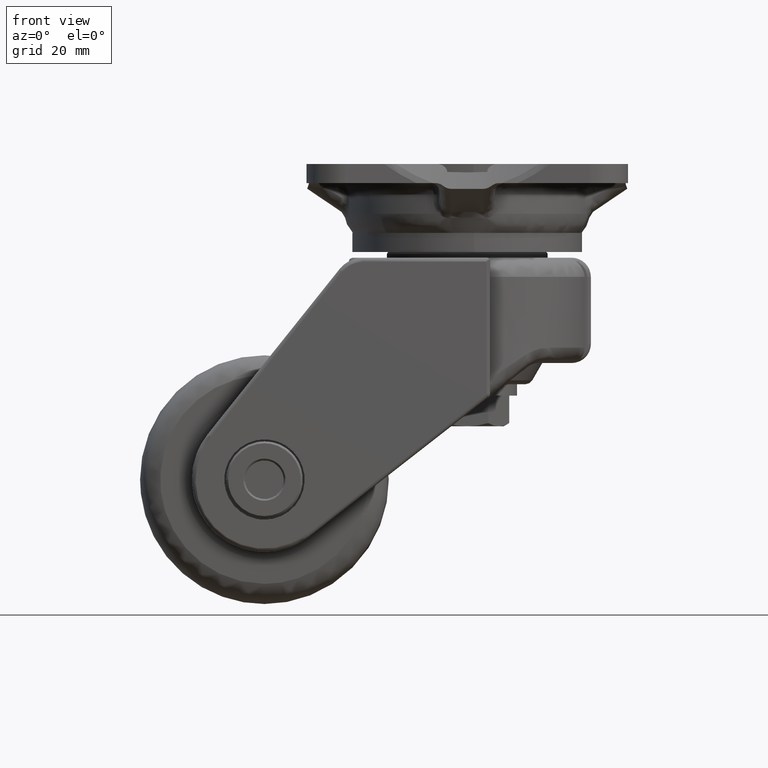
[diagram: clean part render]
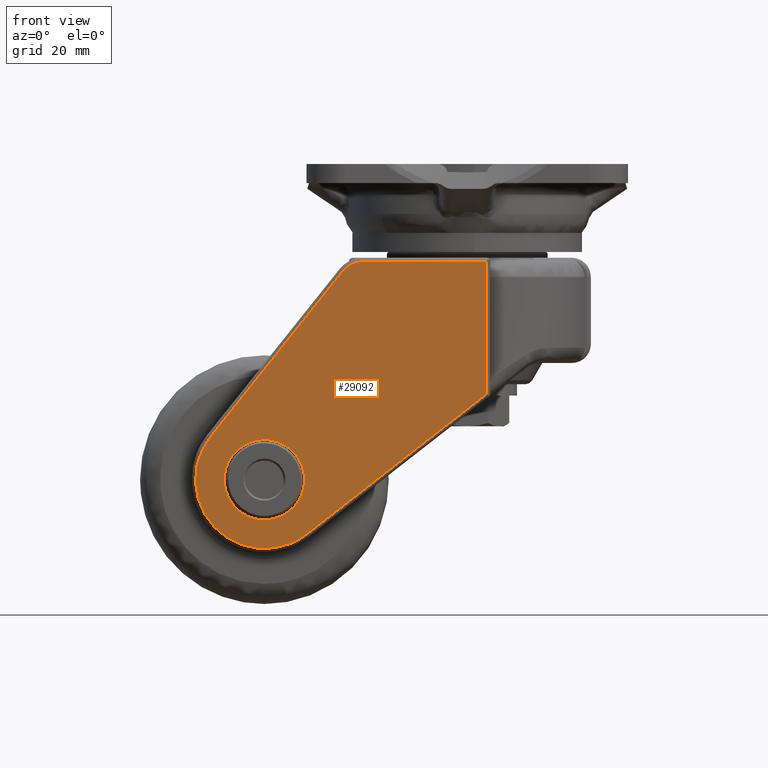
[diagram: same view with one face highlighted and labeled with its STEP entity id]
A machine part, front view. The second image highlights one B-rep face of the part: STEP entity #29092.
In plain terms, the highlighted face is a freeform B-spline surface patch.
Its self-contained STEP definition (entity closure, byte-faithful):
#23173=CARTESIAN_POINT('',(-63.426600026808622,-36.950000000000003,-63.260640536020858));
#23174=VERTEX_POINT('',#23173);
#23180=CARTESIAN_POINT('',(-53.0,-36.950000000000003,-75.0));
#23181=VERTEX_POINT('',#23180);
#23182=CARTESIAN_POINT('',(-63.426600026808615,-36.949999999999996,-63.260640536020858));
#23183=CARTESIAN_POINT('',(-63.500000000000000,-36.950000000000010,-63.878146743570888));
#23184=CARTESIAN_POINT('',(-63.500000000000000,-36.950000000000003,-64.500000000000000));
#23185=CARTESIAN_POINT('',(-63.499999999999993,-36.950000000000003,-75.0));
#23186=CARTESIAN_POINT('',(-53.0,-36.950000000000003,-75.0));
#23194=(BOUNDED_CURVE()B_SPLINE_CURVE(2,(#23182,#23183,#23184,#23185,#23186),.UNSPECIFIED.,.F.,.U.)B_SPLINE_CURVE_WITH_KNOTS((3,2,3),(0.229562473512948,0.250000000000000,0.500000000000000),.UNSPECIFIED.)CURVE()GEOMETRIC_REPRESENTATION_ITEM()RATIONAL_B_SPLINE_CURVE((0.956026754182601,0.976055948330489,1.0,0.707106781186547,1.0))REPRESENTATION_ITEM(''));
#23195=EDGE_CURVE('',#23174,#23181,#23194,.T.);
#23197=CARTESIAN_POINT('',(-42.519584616573979,-36.950000000000003,-65.141009665174607));
#23198=VERTEX_POINT('',#23197);
#23199=CARTESIAN_POINT('',(-53.0,-36.950000000000003,-75.0));
#23200=CARTESIAN_POINT('',(-43.122586297600805,-36.950000000000003,-74.999999999999986));
#23201=CARTESIAN_POINT('',(-42.519584616573979,-36.950000000000003,-65.141009665174607));
#23209=(BOUNDED_CURVE()B_SPLINE_CURVE(2,(#23199,#23200,#23201),.UNSPECIFIED.,.F.,.U.)B_SPLINE_CURVE_WITH_KNOTS((3,3),(0.500000000000000,0.739332962240040),.UNSPECIFIED.)CURVE()GEOMETRIC_REPRESENTATION_ITEM()RATIONAL_B_SPLINE_CURVE((1.0,0.719603993285425,0.976072041669068))REPRESENTATION_ITEM(''));
#23210=EDGE_CURVE('',#23181,#23198,#23209,.T.);
#23284=CARTESIAN_POINT('',(-53.0,-36.950000000000003,-54.0));
#23285=VERTEX_POINT('',#23284);
#23286=CARTESIAN_POINT('',(-42.519584616573987,-36.949999999999996,-65.141009665174607));
#23287=CARTESIAN_POINT('',(-42.499999999999993,-36.949999999999996,-64.820804014693948));
#23288=CARTESIAN_POINT('',(-42.499999999999993,-36.950000000000003,-64.500000000000000));
#23289=CARTESIAN_POINT('',(-42.499999999999993,-36.950000000000003,-54.0));
#23290=CARTESIAN_POINT('',(-53.0,-36.950000000000003,-54.0));
#23298=(BOUNDED_CURVE()B_SPLINE_CURVE(2,(#23286,#23287,#23288,#23289,#23290),.UNSPECIFIED.,.F.,.U.)B_SPLINE_CURVE_WITH_KNOTS((3,2,3),(0.739332962240039,0.750000000000000,1.0),.UNSPECIFIED.)CURVE()GEOMETRIC_REPRESENTATION_ITEM()RATIONAL_B_SPLINE_CURVE((0.976072041669066,0.987502787901121,1.0,0.707106781186547,1.0))REPRESENTATION_ITEM(''));
#23299=EDGE_CURVE('',#23198,#23285,#23298,.T.);
#23301=CARTESIAN_POINT('',(-53.0,-36.950000000000003,-54.0));
#23302=CARTESIAN_POINT('',(-62.325832522339532,-36.949999999999996,-53.999999999999993));
#23303=CARTESIAN_POINT('',(-63.426600026808615,-36.949999999999989,-63.260640536020865));
#23311=(BOUNDED_CURVE()B_SPLINE_CURVE(2,(#23301,#23302,#23303),.UNSPECIFIED.,.F.,.U.)B_SPLINE_CURVE_WITH_KNOTS((3,3),(0.0,0.229562473512948),.UNSPECIFIED.)CURVE()GEOMETRIC_REPRESENTATION_ITEM()RATIONAL_B_SPLINE_CURVE((1.0,0.731050832856059,0.956026754182601))REPRESENTATION_ITEM(''));
#23312=EDGE_CURVE('',#23285,#23174,#23311,.T.);
#28520=CARTESIAN_POINT('',(5.0,-36.950000000000003,-42.112987877898249));
#28521=VERTEX_POINT('',#28520);
#28673=CARTESIAN_POINT('',(-27.150564000000099,-36.950000000000003,-7.499999999999890));
#28674=VERTEX_POINT('',#28673);
#28705=CARTESIAN_POINT('',(-32.620583532473603,-36.950000000000003,-10.132061548698481));
#28706=VERTEX_POINT('',#28705);
#28722=CARTESIAN_POINT('',(-27.150564000000099,-36.950000000000003,-7.500000000000001));
#28723=CARTESIAN_POINT('',(-30.518820864808390,-36.950000000000003,-7.500000000000001));
#28724=CARTESIAN_POINT('',(-32.620583532473603,-36.950000000000003,-10.132061548698481));
#28732=(BOUNDED_CURVE()B_SPLINE_CURVE(2,(#28722,#28723,#28724),.UNSPECIFIED.,.F.,.U.)CURVE()GEOMETRIC_REPRESENTATION_ITEM()QUASI_UNIFORM_CURVE()RATIONAL_B_SPLINE_CURVE((1.0,0.901107986683280,1.0))REPRESENTATION_ITEM(''));
#28733=EDGE_CURVE('',#28674,#28706,#28732,.T.);
#28754=CARTESIAN_POINT('',(-67.065764512074708,-36.950000000000003,-53.268158268081798));
#28755=VERTEX_POINT('',#28754);
#28769=CARTESIAN_POINT('',(-32.620583532473603,-36.950000000000003,-10.132061548698481));
#28770=CARTESIAN_POINT('',(-67.065764512074708,-36.950000000000003,-53.268158268081798));
#28771=QUASI_UNIFORM_CURVE('',1,(#28769,#28770),.UNSPECIFIED.,.F.,.U.);
#28772=EDGE_CURVE('',#28706,#28755,#28771,.T.);
#28797=CARTESIAN_POINT('',(5.0,-36.950000000000003,-7.499999999999890));
#28798=VERTEX_POINT('',#28797);
#28819=CARTESIAN_POINT('',(5.0,-36.950000000000003,-7.499999999999890));
#28820=CARTESIAN_POINT('',(-27.150564000000099,-36.950000000000003,-7.499999999999890));
#28821=QUASI_UNIFORM_CURVE('',1,(#28819,#28820),.UNSPECIFIED.,.F.,.U.);
#28822=EDGE_CURVE('',#28798,#28674,#28821,.T.);
#28852=CARTESIAN_POINT('',(-41.934112114154850,-36.950000000000003,-78.696694167935917));
#28853=VERTEX_POINT('',#28852);
#28869=CARTESIAN_POINT('',(-67.065764512074722,-36.950000000000003,-53.268158268081791));
#28870=CARTESIAN_POINT('',(-77.050443980785474,-36.950000000000010,-65.772087141681368));
#28871=CARTESIAN_POINT('',(-65.802438222686021,-36.950000000000003,-77.152967065250266));
#28872=CARTESIAN_POINT('',(-54.554432464586569,-36.950000000000010,-88.533846988819136));
#28873=CARTESIAN_POINT('',(-41.934112114154857,-36.950000000000003,-78.696694167935931));
#28881=(BOUNDED_CURVE()B_SPLINE_CURVE(2,(#28869,#28870,#28871,#28872,#28873),.UNSPECIFIED.,.F.,.U.)B_SPLINE_CURVE_WITH_KNOTS((3,2,3),(0.0,0.500000000000000,1.0),.UNSPECIFIED.)CURVE()GEOMETRIC_REPRESENTATION_ITEM()RATIONAL_B_SPLINE_CURVE((1.0,0.747382219244567,1.0,0.747382219244567,1.0))REPRESENTATION_ITEM(''));
#28882=EDGE_CURVE('',#28755,#28853,#28881,.T.);
#28924=CARTESIAN_POINT('',(5.0,-36.950000000000003,-42.112987877898249));
#28925=CARTESIAN_POINT('',(5.0,-36.950000000000003,-7.499999999999890));
#28926=QUASI_UNIFORM_CURVE('',1,(#28924,#28925),.UNSPECIFIED.,.F.,.U.);
#28927=EDGE_CURVE('',#28521,#28798,#28926,.T.);
#28953=CARTESIAN_POINT('',(-41.934112114154850,-36.950000000000003,-78.696694167935917));
#28954=CARTESIAN_POINT('',(5.0,-36.950000000000003,-42.112987877898249));
#28955=QUASI_UNIFORM_CURVE('',1,(#28953,#28954),.UNSPECIFIED.,.F.,.U.);
#28956=EDGE_CURVE('',#28853,#28521,#28955,.T.);
#29073=CARTESIAN_POINT('',(-74.796016003356101,-36.950000000000003,-86.243790586422392));
#29074=CARTESIAN_POINT('',(8.796193144156263,-36.950000000000003,-86.243790586422392));
#29075=CARTESIAN_POINT('',(-74.796016003356101,-36.950000000000003,-3.753865131118422));
#29076=CARTESIAN_POINT('',(8.796193144156263,-36.950000000000003,-3.753865131118422));
#29077=B_SPLINE_SURFACE_WITH_KNOTS('',1,1,((#29073,#29075),(#29074,#29076)),.UNSPECIFIED.,.F.,.F.,.U.,(2,2),(2,2),(0.0,83.592209147512364),(0.0,82.489925455303975),.UNSPECIFIED.);
#29078=ORIENTED_EDGE('',*,*,#28822,.T.);
#29079=ORIENTED_EDGE('',*,*,#28733,.T.);
#29080=ORIENTED_EDGE('',*,*,#28772,.T.);
#29081=ORIENTED_EDGE('',*,*,#28882,.T.);
#29082=ORIENTED_EDGE('',*,*,#28956,.T.);
#29083=ORIENTED_EDGE('',*,*,#28927,.T.);
#29084=EDGE_LOOP('',(#29078,#29079,#29080,#29081,#29082,#29083));
#29085=FACE_OUTER_BOUND('',#29084,.T.);
#29086=ORIENTED_EDGE('',*,*,#23210,.F.);
#29087=ORIENTED_EDGE('',*,*,#23195,.F.);
#29088=ORIENTED_EDGE('',*,*,#23312,.F.);
#29089=ORIENTED_EDGE('',*,*,#23299,.F.);
#29090=EDGE_LOOP('',(#29086,#29087,#29088,#29089));
#29091=FACE_BOUND('',#29090,.T.);
#29092=ADVANCED_FACE('',(#29085,#29091),#29077,.T.);